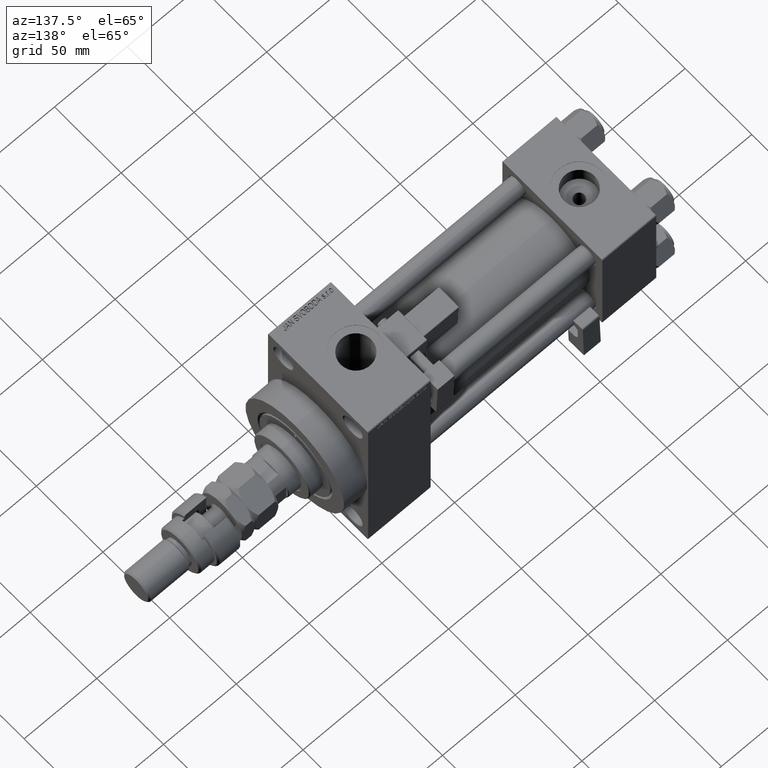
[diagram: clean part render]
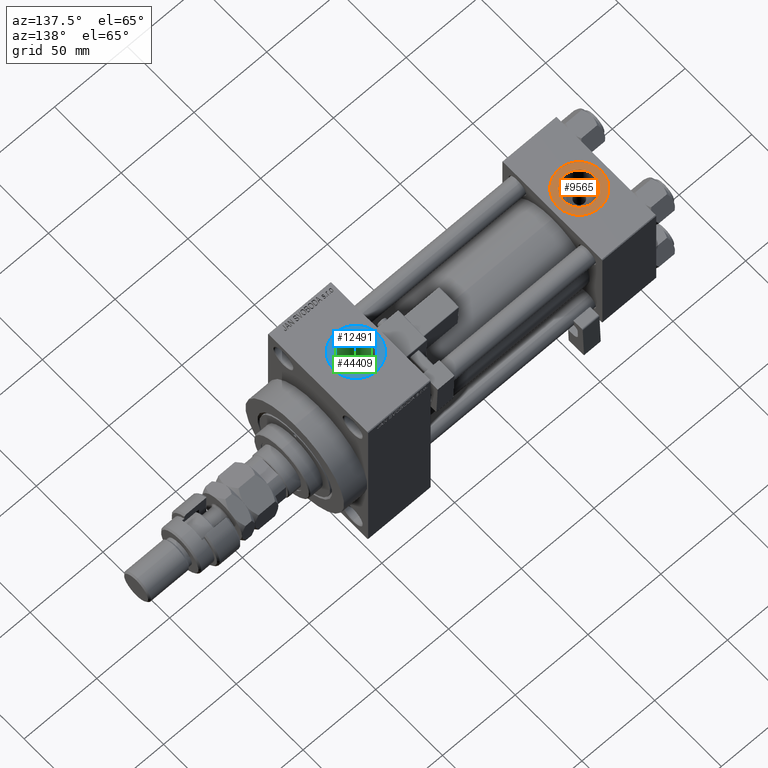
[diagram: same view with three faces highlighted in distinct colors, each labeled with its STEP entity id]
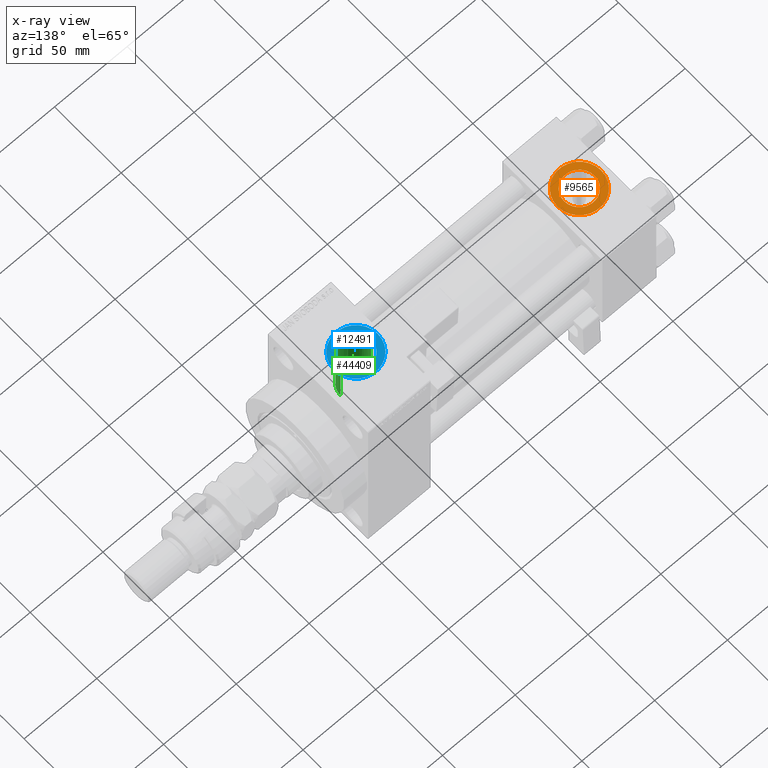
[diagram: x-ray of the same camera — body ghosted, the three highlighted faces saturated]
A machine part, auxiliary view with three faces highlighted in distinct colors.
The next image is the same camera in x-ray (body ghosted, the three faces saturated) — at least one of them is partly hidden behind the body in this view.
Their STEP definitions:

[orange] entity #9565 — the highlighted planar face has unit normal (0, 0, 1).
#449 = FACE_BOUND ( 'NONE', #18237, .T. ) ;
#800 = DIRECTION ( 'NONE',  ( 1.000000000000000000, 0.000000000000000000, 0.000000000000000000 ) ) ;
#5347 = DIRECTION ( 'NONE',  ( 1.000000000000000000, 0.000000000000000000, 0.000000000000000000 ) ) ;
#8968 = EDGE_LOOP ( 'NONE', ( #17501, #49492 ) ) ;
#9565 = ADVANCED_FACE ( 'NONE', ( #449, #24612 ), #44744, .T. ) ;
#9845 = DIRECTION ( 'NONE',  ( 0.000000000000000000, 0.000000000000000000, 1.000000000000000000 ) ) ;
#10429 = VERTEX_POINT ( 'NONE', #42992 ) ;
#12553 = CARTESIAN_POINT ( 'NONE',  ( 3.499999999999997780, -3.367200229209391300E-15, 37.29999999999999716 ) ) ;
#12812 = AXIS2_PLACEMENT_3D ( 'NONE', #25250, #36413, #37175 ) ;
#13191 = DIRECTION ( 'NONE',  ( 0.000000000000000000, 0.000000000000000000, 1.000000000000000000 ) ) ;
#13539 = CARTESIAN_POINT ( 'NONE',  ( 18.50000000000000000, -5.204170427930421283E-15, 37.29999999999999716 ) ) ;
#14990 = EDGE_CURVE ( 'NONE', #16077, #49263, #45841, .T. ) ;
#16077 = VERTEX_POINT ( 'NONE', #12553 ) ;
#16118 = AXIS2_PLACEMENT_3D ( 'NONE', #44996, #25110, #17156 ) ;
#17156 = DIRECTION ( 'NONE',  ( 1.000000000000000000, 0.000000000000000000, -0.000000000000000000 ) ) ;
#17501 = ORIENTED_EDGE ( 'NONE', *, *, #32411, .T. ) ;
#18237 = EDGE_LOOP ( 'NONE', ( #28317, #51692 ) ) ;
#19934 = CARTESIAN_POINT ( 'NONE',  ( 8.019999999999999574, -3.920740582423995006E-15, 37.29999999999999716 ) ) ;
#20202 = VERTEX_POINT ( 'NONE', #19934 ) ;
#20862 = AXIS2_PLACEMENT_3D ( 'NONE', #45867, #49076, #800 ) ;
#24612 = FACE_OUTER_BOUND ( 'NONE', #8968, .T. ) ;
#25110 = DIRECTION ( 'NONE',  ( 0.000000000000000000, 0.000000000000000000, 1.000000000000000000 ) ) ;
#25250 = CARTESIAN_POINT ( 'NONE',  ( 18.50000000000000000, -5.204170427930421283E-15, 37.29999999999999716 ) ) ;
#28317 = ORIENTED_EDGE ( 'NONE', *, *, #31243, .F. ) ;
#28509 = CIRCLE ( 'NONE', #42042, 15.00000000000000355 ) ;
#31243 = EDGE_CURVE ( 'NONE', #10429, #20202, #43723, .T. ) ;
#32411 = EDGE_CURVE ( 'NONE', #49263, #16077, #28509, .T. ) ;
#33342 = CARTESIAN_POINT ( 'NONE',  ( 18.50000000000000000, -5.204170427930421283E-15, 37.29999999999999716 ) ) ;
#34513 = AXIS2_PLACEMENT_3D ( 'NONE', #13539, #9845, #5347 ) ;
#36413 = DIRECTION ( 'NONE',  ( 0.000000000000000000, 0.000000000000000000, 1.000000000000000000 ) ) ;
#36664 = EDGE_CURVE ( 'NONE', #20202, #10429, #42960, .T. ) ;
#37175 = DIRECTION ( 'NONE',  ( 1.000000000000000000, 0.000000000000000000, 0.000000000000000000 ) ) ;
#38326 = CARTESIAN_POINT ( 'NONE',  ( 33.50000000000000000, -5.204170427930421283E-15, 37.29999999999999716 ) ) ;
#42042 = AXIS2_PLACEMENT_3D ( 'NONE', #33342, #13191, #46800 ) ;
#42960 = CIRCLE ( 'NONE', #34513, 10.48000000000000043 ) ;
#42992 = CARTESIAN_POINT ( 'NONE',  ( 28.98000000000000043, -5.204170427930421283E-15, 37.29999999999999716 ) ) ;
#43723 = CIRCLE ( 'NONE', #20862, 10.48000000000000043 ) ;
#44744 = PLANE ( 'NONE',  #16118 ) ;
#44996 = CARTESIAN_POINT ( 'NONE',  ( 18.50000000000000000, -5.204170427930421283E-15, 37.29999999999999716 ) ) ;
#45841 = CIRCLE ( 'NONE', #12812, 15.00000000000000355 ) ;
#45867 = CARTESIAN_POINT ( 'NONE',  ( 18.50000000000000000, -5.204170427930421283E-15, 37.29999999999999716 ) ) ;
#46800 = DIRECTION ( 'NONE',  ( 1.000000000000000000, 0.000000000000000000, 0.000000000000000000 ) ) ;
#49076 = DIRECTION ( 'NONE',  ( 0.000000000000000000, 0.000000000000000000, 1.000000000000000000 ) ) ;
#49263 = VERTEX_POINT ( 'NONE', #38326 ) ;
#49492 = ORIENTED_EDGE ( 'NONE', *, *, #14990, .T. ) ;
#51692 = ORIENTED_EDGE ( 'NONE', *, *, #36664, .F. ) ;

[blue] entity #12491 — the highlighted planar face has unit normal (0, 0, 1).
#182 = DIRECTION ( 'NONE',  ( 1.000000000000000000, 0.000000000000000000, 0.000000000000000000 ) ) ;
#408 = DIRECTION ( 'NONE',  ( 0.000000000000000000, 0.000000000000000000, 1.000000000000000000 ) ) ;
#1497 = CARTESIAN_POINT ( 'NONE',  ( 172.0000000000000000, -1.184237892933500047E-14, 63.79999999999996874 ) ) ;
#3009 = CIRCLE ( 'NONE', #16545, 10.47999999999998977 ) ;
#3083 = CIRCLE ( 'NONE', #34408, 15.00000000000001421 ) ;
#7664 = DIRECTION ( 'NONE',  ( -0.000000000000000000, -0.000000000000000000, -1.000000000000000000 ) ) ;
#8597 = AXIS2_PLACEMENT_3D ( 'NONE', #44955, #408, #48688 ) ;
#9373 = DIRECTION ( 'NONE',  ( 1.000000000000000000, 0.000000000000000000, 0.000000000000000000 ) ) ;
#10534 = DIRECTION ( 'NONE',  ( 1.000000000000000000, 0.000000000000000000, 0.000000000000000000 ) ) ;
#10784 = EDGE_LOOP ( 'NONE', ( #40510, #33643 ) ) ;
#12491 = ADVANCED_FACE ( 'NONE', ( #32000, #36997 ), #16862, .T. ) ;
#13775 = EDGE_CURVE ( 'NONE', #25332, #37848, #35647, .T. ) ;
#14121 = CARTESIAN_POINT ( 'NONE',  ( 172.0000000000000000, -1.184237892933500047E-14, 63.79999999999996874 ) ) ;
#16153 = DIRECTION ( 'NONE',  ( 0.000000000000000000, 0.000000000000000000, 1.000000000000000000 ) ) ;
#16545 = AXIS2_PLACEMENT_3D ( 'NONE', #36525, #7664, #182 ) ;
#16862 = PLANE ( 'NONE',  #8597 ) ;
#16999 = VERTEX_POINT ( 'NONE', #52095 ) ;
#22812 = VERTEX_POINT ( 'NONE', #29262 ) ;
#25332 = VERTEX_POINT ( 'NONE', #40373 ) ;
#28350 = DIRECTION ( 'NONE',  ( 1.000000000000000000, 0.000000000000000000, 0.000000000000000000 ) ) ;
#28735 = EDGE_CURVE ( 'NONE', #22812, #16999, #3009, .T. ) ;
#29262 = CARTESIAN_POINT ( 'NONE',  ( 161.5200000000000102, -1.184237892933500047E-14, 63.79999999999996874 ) ) ;
#30989 = CARTESIAN_POINT ( 'NONE',  ( 156.9999999999999716, -1.000540873061396536E-14, 63.79999999999996874 ) ) ;
#31486 = EDGE_CURVE ( 'NONE', #37848, #25332, #3083, .T. ) ;
#32000 = FACE_BOUND ( 'NONE', #47102, .T. ) ;
#32851 = CIRCLE ( 'NONE', #50660, 10.47999999999998977 ) ;
#33643 = ORIENTED_EDGE ( 'NONE', *, *, #31486, .T. ) ;
#34373 = DIRECTION ( 'NONE',  ( -0.000000000000000000, -0.000000000000000000, -1.000000000000000000 ) ) ;
#34408 = AXIS2_PLACEMENT_3D ( 'NONE', #52482, #16153, #28350 ) ;
#35243 = ORIENTED_EDGE ( 'NONE', *, *, #28735, .T. ) ;
#35647 = CIRCLE ( 'NONE', #48368, 15.00000000000001421 ) ;
#36525 = CARTESIAN_POINT ( 'NONE',  ( 172.0000000000000000, -1.184237892933500047E-14, 63.79999999999996874 ) ) ;
#36997 = FACE_OUTER_BOUND ( 'NONE', #10784, .T. ) ;
#37714 = DIRECTION ( 'NONE',  ( 0.000000000000000000, 0.000000000000000000, 1.000000000000000000 ) ) ;
#37848 = VERTEX_POINT ( 'NONE', #30989 ) ;
#40373 = CARTESIAN_POINT ( 'NONE',  ( 187.0000000000000000, -1.184237892933500047E-14, 63.79999999999996874 ) ) ;
#40510 = ORIENTED_EDGE ( 'NONE', *, *, #13775, .T. ) ;
#42230 = ORIENTED_EDGE ( 'NONE', *, *, #52309, .T. ) ;
#44955 = CARTESIAN_POINT ( 'NONE',  ( 172.0000000000000000, -1.184237892933500047E-14, 63.79999999999996874 ) ) ;
#47102 = EDGE_LOOP ( 'NONE', ( #35243, #42230 ) ) ;
#48368 = AXIS2_PLACEMENT_3D ( 'NONE', #14121, #37714, #9373 ) ;
#48688 = DIRECTION ( 'NONE',  ( 1.000000000000000000, 0.000000000000000000, -0.000000000000000000 ) ) ;
#50660 = AXIS2_PLACEMENT_3D ( 'NONE', #1497, #34373, #10534 ) ;
#52095 = CARTESIAN_POINT ( 'NONE',  ( 182.4799999999999613, -1.055894908382857656E-14, 63.79999999999996874 ) ) ;
#52309 = EDGE_CURVE ( 'NONE', #16999, #22812, #32851, .T. ) ;
#52482 = CARTESIAN_POINT ( 'NONE',  ( 172.0000000000000000, -1.184237892933500047E-14, 63.79999999999996874 ) ) ;

[green] entity #44409 — the highlighted cylindrical surface (edge-blend (fillet) strip) has radius 10.48 mm, axis along (0, 0, -1).
#865 = VERTEX_POINT ( 'NONE', #5462 ) ;
#1497 = CARTESIAN_POINT ( 'NONE',  ( 172.0000000000000000, -1.184237892933500047E-14, 63.79999999999996874 ) ) ;
#1536 = B_SPLINE_CURVE_WITH_KNOTS ( 'NONE', 3,
 ( #30527, #5887, #22052, #13548, #26022, #2148, #38469, #34228, #37938, #38207, #46700, #50685, #13810, #25760, #33700, #1890, #2427, #1628, #17800, #14351, #46155, #50954, #10123, #29996, #17530, #9596 ),
 .UNSPECIFIED., .F., .F.,
 ( 4, 2, 2, 2, 2, 2, 2, 2, 2, 2, 2, 2, 4 ),
 ( 0.01781170071191069335, 0.02003745927526334042, 0.02115033855693966569, 0.02226321783861599096, 0.02337609712029231276, 0.02448897640196863804, 0.02671473496532128511, 0.02782761424699763814, 0.02894049352867399116, 0.03005337281035034419, 0.03116625209202669722, 0.03339201065537940327, 0.03561776921873211627 ),
 .UNSPECIFIED. ) ;
#1628 = CARTESIAN_POINT ( 'NONE',  ( 176.8603660912149564, -9.291949300782537335, 24.81826977973610227 ) ) ;
#1890 = CARTESIAN_POINT ( 'NONE',  ( 177.8022832347253939, -8.734885810676990658, 25.02004257437575063 ) ) ;
#2148 = CARTESIAN_POINT ( 'NONE',  ( 181.8335546017134448, -3.642695553053282520, 26.25084325021122922 ) ) ;
#2427 = CARTESIAN_POINT ( 'NONE',  ( 177.4947120380321337, -8.931495953537138988, 24.95025484238639990 ) ) ;
#3620 = CARTESIAN_POINT ( 'NONE',  ( 170.0989953179744134, -10.32634953368260256, 17.70945009121303215 ) ) ;
#4769 = DIRECTION ( 'NONE',  ( -0.000000000000000000, -0.000000000000000000, 1.000000000000000000 ) ) ;
#5462 = CARTESIAN_POINT ( 'NONE',  ( 182.4800000000001319, 1.369086091260426415E-14, 26.50000000000006750 ) ) ;
#5887 = CARTESIAN_POINT ( 'NONE',  ( 182.4800000000000182, -0.7466733969459918852, 26.50000000000001776 ) ) ;
#6218 = CYLINDRICAL_SURFACE ( 'NONE', #12788, 10.47999999999998977 ) ;
#6827 = CARTESIAN_POINT ( 'NONE',  ( 167.3860343387702301, -9.414895611962236899, 18.21089574232528108 ) ) ;
#8777 = CARTESIAN_POINT ( 'NONE',  ( 182.4799999999999613, -1.055894908382857656E-14, 86.79999999999995453 ) ) ;
#9335 = ORIENTED_EDGE ( 'NONE', *, *, #32003, .T. ) ;
#9596 = CARTESIAN_POINT ( 'NONE',  ( 170.7400000000000375, -10.40398000767014430, 24.37226292324945476 ) ) ;
#9661 = DIRECTION ( 'NONE',  ( -1.000000000000000000, 0.000000000000000000, 0.000000000000000000 ) ) ;
#10123 = CARTESIAN_POINT ( 'NONE',  ( 173.7216423275559407, -10.36418010715236626, 24.38933169417625990 ) ) ;
#10534 = DIRECTION ( 'NONE',  ( 1.000000000000000000, 0.000000000000000000, 0.000000000000000000 ) ) ;
#11057 = CARTESIAN_POINT ( 'NONE',  ( 163.9658951235676625, -6.736478654131070165, 19.36312927646824278 ) ) ;
#12788 = AXIS2_PLACEMENT_3D ( 'NONE', #17871, #34033, #9661 ) ;
#13000 = DIRECTION ( 'NONE',  ( 0.000000000000000000, 0.000000000000000000, -1.000000000000000000 ) ) ;
#13198 = VERTEX_POINT ( 'NONE', #48193 ) ;
#13548 = CARTESIAN_POINT ( 'NONE',  ( 182.1654842721632974, -2.575241489874368739, 26.37710048711162614 ) ) ;
#13810 = CARTESIAN_POINT ( 'NONE',  ( 179.5076201536012377, -7.348534936426533548, 25.46581292754185100 ) ) ;
#14351 = CARTESIAN_POINT ( 'NONE',  ( 175.8600678267364401, -9.750145953289923284, 24.64162310621549423 ) ) ;
#14756 = CARTESIAN_POINT ( 'NONE',  ( 169.4743138489852470, -10.19113621709993289, 17.78872259750077944 ) ) ;
#15017 = CARTESIAN_POINT ( 'NONE',  ( 161.7557754428708847, -2.233872855162175153, 20.38041083426451650 ) ) ;
#15799 = CARTESIAN_POINT ( 'NONE',  ( 162.7251524828655249, -4.919883431204983282, 19.90870771860741684 ) ) ;
#16999 = VERTEX_POINT ( 'NONE', #52095 ) ;
#17530 = CARTESIAN_POINT ( 'NONE',  ( 171.4868983507928135, -10.49443499905853905, 24.33364968799253347 ) ) ;
#17800 = CARTESIAN_POINT ( 'NONE',  ( 176.5335921408433535, -9.455792512420336138, 24.75606841526505875 ) ) ;
#17871 = CARTESIAN_POINT ( 'NONE',  ( 172.0000000000000000, -1.184237892933500047E-14, 86.79999999999995453 ) ) ;
#18749 = CARTESIAN_POINT ( 'NONE',  ( 170.7400000000000375, -10.40398000767014430, 17.66372554134602879 ) ) ;
#19002 = CARTESIAN_POINT ( 'NONE',  ( 162.1063378233203025, -3.470716205836937629, 20.20629303502188989 ) ) ;
#19531 = CARTESIAN_POINT ( 'NONE',  ( 163.3953798552083754, -5.990768218169447934, 19.60690346560341268 ) ) ;
#19792 = CARTESIAN_POINT ( 'NONE',  ( 166.5531845509292168, -8.975341525110636098, 18.43369678050423133 ) ) ;
#19939 = ORIENTED_EDGE ( 'NONE', *, *, #25656, .F. ) ;
#21233 = VECTOR ( 'NONE', #38733, 1000.000000000000000 ) ;
#22052 = CARTESIAN_POINT ( 'NONE',  ( 182.4011065554137758, -1.483758503940585172, 26.46850309434598714 ) ) ;
#22812 = VERTEX_POINT ( 'NONE', #29262 ) ;
#22998 = CARTESIAN_POINT ( 'NONE',  ( 166.0263084910633324, -8.633636339713358865, 18.59810417378389857 ) ) ;
#23519 = CARTESIAN_POINT ( 'NONE',  ( 168.2578787675114427, -9.794280953047088900, 18.00947878310445205 ) ) ;
#25409 = EDGE_CURVE ( 'NONE', #865, #31217, #1536, .T. ) ;
#25656 = EDGE_CURVE ( 'NONE', #29529, #31217, #36590, .T. ) ;
#25760 = CARTESIAN_POINT ( 'NONE',  ( 178.6874981071936759, -8.077221093107556982, 25.24030799844107520 ) ) ;
#26022 = CARTESIAN_POINT ( 'NONE',  ( 182.0665133812162821, -2.938253791439155549, 26.33899517628734799 ) ) ;
#26399 = ORIENTED_EDGE ( 'NONE', *, *, #25409, .T. ) ;
#26813 = LINE ( 'NONE', #38997, #21233 ) ;
#26967 = CARTESIAN_POINT ( 'NONE',  ( 168.5601267213961876, -9.904527187573171076, 17.94888070193247742 ) ) ;
#27489 = CARTESIAN_POINT ( 'NONE',  ( 162.4472730664947164, -4.356133276745598693, 20.04082582304832627 ) ) ;
#27711 = ORIENTED_EDGE ( 'NONE', *, *, #52309, .F. ) ;
#27750 = CARTESIAN_POINT ( 'NONE',  ( 165.0381797508611044, -7.858608369745950561, 18.93862270061621444 ) ) ;
#29262 = CARTESIAN_POINT ( 'NONE',  ( 161.5200000000000102, -1.184237892933500047E-14, 63.79999999999996874 ) ) ;
#29529 = VERTEX_POINT ( 'NONE', #18749 ) ;
#29996 = CARTESIAN_POINT ( 'NONE',  ( 172.2451057705677329, -10.50334255171939901, 24.32972513250578928 ) ) ;
#30527 = CARTESIAN_POINT ( 'NONE',  ( 182.4800000000001319, 1.369086091260426415E-14, 26.50000000000006750 ) ) ;
#31201 = CARTESIAN_POINT ( 'NONE',  ( 161.5788755912575425, -1.283068547344819565, 20.46971103676262160 ) ) ;
#31217 = VERTEX_POINT ( 'NONE', #39821 ) ;
#32003 = EDGE_CURVE ( 'NONE', #16999, #865, #41102, .T. ) ;
#32476 = VECTOR ( 'NONE', #4769, 1000.000000000000000 ) ;
#32851 = CIRCLE ( 'NONE', #50660, 10.47999999999998977 ) ;
#33700 = CARTESIAN_POINT ( 'NONE',  ( 178.3983008714430980, -8.308216825530738703, 25.16494175890557017 ) ) ;
#34033 = DIRECTION ( 'NONE',  ( 0.000000000000000000, 0.000000000000000000, -1.000000000000000000 ) ) ;
#34228 = CARTESIAN_POINT ( 'NONE',  ( 181.3963988635402700, -4.655434592126335147, 26.09007526830298929 ) ) ;
#34373 = DIRECTION ( 'NONE',  ( -0.000000000000000000, -0.000000000000000000, -1.000000000000000000 ) ) ;
#35167 = CARTESIAN_POINT ( 'NONE',  ( 170.7400000000000375, -10.40398000767014430, 17.66372554134602879 ) ) ;
#35701 = CARTESIAN_POINT ( 'NONE',  ( 161.5200000000000102, 2.510525899703770247E-15, 20.50000000000000000 ) ) ;
#35953 = CARTESIAN_POINT ( 'NONE',  ( 163.2177924678372847, -5.727359184013986138, 19.68566307691175155 ) ) ;
#36590 = LINE ( 'NONE', #37103, #32476 ) ;
#37103 = CARTESIAN_POINT ( 'NONE',  ( 170.7400000000000375, -10.40398000767014430, 86.79999999999995453 ) ) ;
#37938 = CARTESIAN_POINT ( 'NONE',  ( 181.2276638786152319, -4.981583166679941499, 26.02957788900646108 ) ) ;
#38207 = CARTESIAN_POINT ( 'NONE',  ( 180.8553297434205831, -5.616857363200481679, 25.89992295911057596 ) ) ;
#38469 = CARTESIAN_POINT ( 'NONE',  ( 181.6993435614955672, -3.985990130492280237, 26.20070574291653998 ) ) ;
#38733 = DIRECTION ( 'NONE',  ( 0.000000000000000000, 0.000000000000000000, -1.000000000000000000 ) ) ;
#38997 = CARTESIAN_POINT ( 'NONE',  ( 161.5200000000000102, -1.184237892933500047E-14, 86.79999999999995453 ) ) ;
#39151 = CARTESIAN_POINT ( 'NONE',  ( 163.7690786171584989, -6.494668957650279850, 19.44580269579669718 ) ) ;
#39334 = ORIENTED_EDGE ( 'NONE', *, *, #52377, .T. ) ;
#39611 = ORIENTED_EDGE ( 'NONE', *, *, #43865, .F. ) ;
#39821 = CARTESIAN_POINT ( 'NONE',  ( 170.7400000000000375, -10.40398000767014430, 24.37226292324945476 ) ) ;
#41102 = LINE ( 'NONE', #8777, #49651 ) ;
#43123 = CARTESIAN_POINT ( 'NONE',  ( 167.6712488263175942, -9.549519568135629299, 18.14045042009996322 ) ) ;
#43865 = EDGE_CURVE ( 'NONE', #22812, #13198, #26813, .T. ) ;
#44175 = CARTESIAN_POINT ( 'NONE',  ( 162.0054261414356347, -3.168907222089414333, 20.25599475177158837 ) ) ;
#44409 = ADVANCED_FACE ( 'NONE', ( #46765 ), #6218, .F. ) ;
#44671 = B_SPLINE_CURVE_WITH_KNOTS ( 'NONE', 3,
 ( #35167, #3620, #14756, #26967, #23519, #43123, #6827, #19792, #22998, #27750, #51350, #11057, #39151, #19531, #35953, #15799, #27489, #19002, #44175, #52135, #15017, #31201, #47375, #35701 ),
 .UNSPECIFIED., .F., .F.,
 ( 4, 2, 2, 2, 2, 2, 2, 2, 2, 2, 2, 4 ),
 ( 0.01794441051450869698, 0.01987210289621866438, 0.02083594908707364982, 0.02179979527792863525, 0.02372748765963867551, 0.02565518004134871577, 0.02661902623220371161, 0.02758287242305870399, 0.02951056480476868873, 0.03047441099562368111, 0.03143825718647867695, 0.03336594956818868252 ),
 .UNSPECIFIED. ) ;
#45962 = EDGE_LOOP ( 'NONE', ( #27711, #9335, #26399, #19939, #39334, #39611 ) ) ;
#46155 = CARTESIAN_POINT ( 'NONE',  ( 175.5115735695665080, -9.881194972351261541, 24.58915736193083390 ) ) ;
#46700 = CARTESIAN_POINT ( 'NONE',  ( 180.6508763872860754, -5.926808359427492512, 25.83050513016100425 ) ) ;
#46765 = FACE_OUTER_BOUND ( 'NONE', #45962, .T. ) ;
#47375 = CARTESIAN_POINT ( 'NONE',  ( 161.5200000000000102, -0.6440971456680825158, 20.50000000000000355 ) ) ;
#48193 = CARTESIAN_POINT ( 'NONE',  ( 161.5200000000000102, 2.510525899703770247E-15, 20.50000000000000000 ) ) ;
#49651 = VECTOR ( 'NONE', #13000, 1000.000000000000000 ) ;
#50660 = AXIS2_PLACEMENT_3D ( 'NONE', #1497, #34373, #10534 ) ;
#50685 = CARTESIAN_POINT ( 'NONE',  ( 179.9981355541606547, -6.811571481472467937, 25.61680511670813942 ) ) ;
#50954 = CARTESIAN_POINT ( 'NONE',  ( 174.4459359432478891, -10.21777125531389707, 24.45211332338677579 ) ) ;
#51350 = CARTESIAN_POINT ( 'NONE',  ( 164.5858530633663577, -7.432843903534917196, 19.11142359022018766 ) ) ;
#52095 = CARTESIAN_POINT ( 'NONE',  ( 182.4799999999999613, -1.055894908382857656E-14, 63.79999999999996874 ) ) ;
#52135 = CARTESIAN_POINT ( 'NONE',  ( 161.8301889492347527, -2.551161066698729663, 20.34303009823682729 ) ) ;
#52309 = EDGE_CURVE ( 'NONE', #16999, #22812, #32851, .T. ) ;
#52377 = EDGE_CURVE ( 'NONE', #29529, #13198, #44671, .T. ) ;